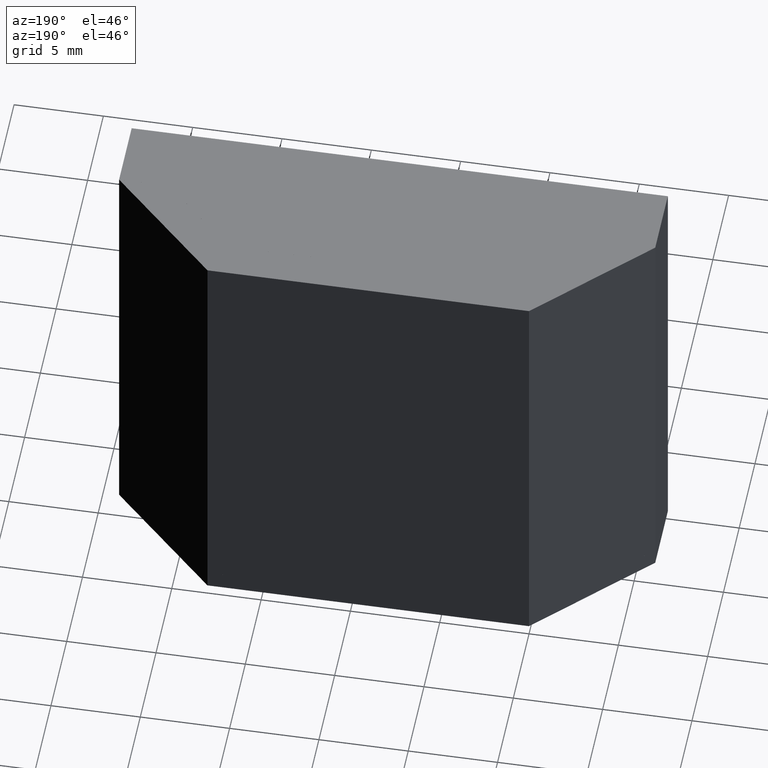
[diagram: clean part render]
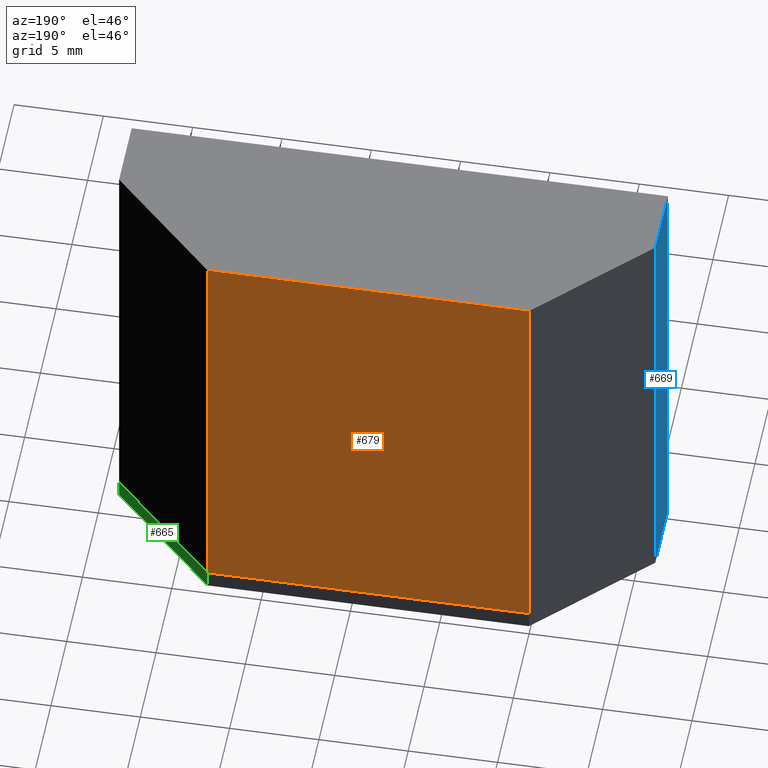
[diagram: same view with three faces highlighted in distinct colors, each labeled with its STEP entity id]
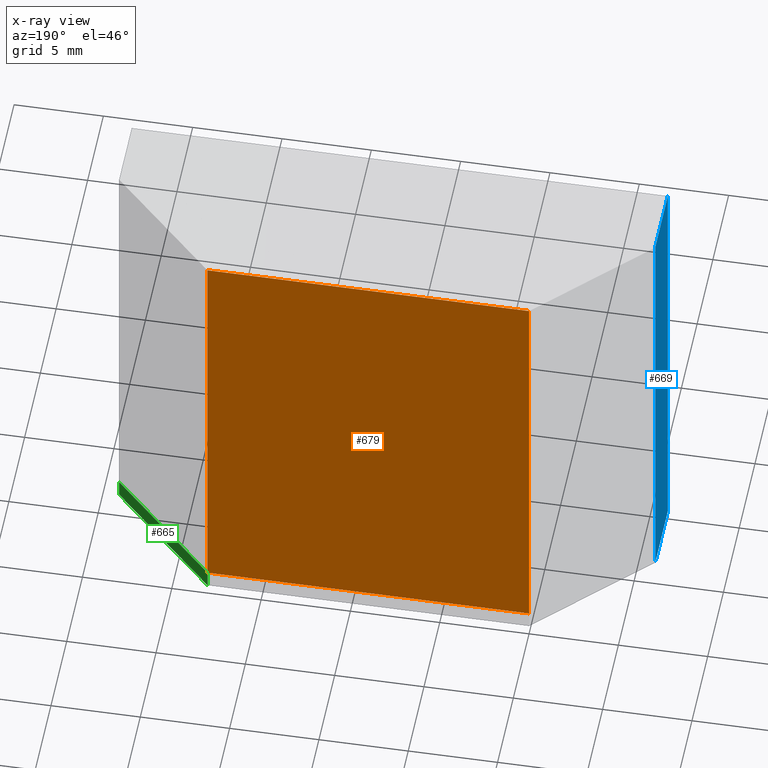
[diagram: x-ray of the same camera — body ghosted, the three highlighted faces saturated]
A machine part, auxiliary view with three faces highlighted in distinct colors.
The next image is the same camera in x-ray (body ghosted, the three faces saturated) — at least one of them is partly hidden behind the body in this view.
Their STEP definitions:

[orange] entity #679 — the highlighted planar face has unit normal (0, 1, 0).
#68=FACE_OUTER_BOUND('',#109,.T.);
#109=EDGE_LOOP('',(#569,#570,#571,#572));
#183=LINE('',#1127,#268);
#184=LINE('',#1129,#269);
#185=LINE('',#1131,#270);
#186=LINE('',#1132,#271);
#268=VECTOR('',#935,10.);
#269=VECTOR('',#936,10.);
#270=VECTOR('',#937,10.);
#271=VECTOR('',#938,10.);
#337=VERTEX_POINT('',#1125);
#338=VERTEX_POINT('',#1126);
#339=VERTEX_POINT('',#1128);
#340=VERTEX_POINT('',#1130);
#419=EDGE_CURVE('',#337,#338,#183,.T.);
#420=EDGE_CURVE('',#339,#338,#184,.T.);
#421=EDGE_CURVE('',#339,#340,#185,.T.);
#422=EDGE_CURVE('',#340,#337,#186,.T.);
#569=ORIENTED_EDGE('',*,*,#419,.T.);
#570=ORIENTED_EDGE('',*,*,#420,.F.);
#571=ORIENTED_EDGE('',*,*,#421,.T.);
#572=ORIENTED_EDGE('',*,*,#422,.T.);
#644=PLANE('',#787);
#679=ADVANCED_FACE('',(#68),#644,.T.);
#787=AXIS2_PLACEMENT_3D('',#1124,#933,#934);
#933=DIRECTION('center_axis',(0.,1.,0.));
#934=DIRECTION('ref_axis',(0.,0.,1.));
#935=DIRECTION('',(1.,0.,0.));
#936=DIRECTION('',(0.,0.,1.));
#937=DIRECTION('',(-1.,0.,0.));
#938=DIRECTION('',(0.,0.,1.));
#1124=CARTESIAN_POINT('Origin',(0.,0.,0.));
#1125=CARTESIAN_POINT('',(-9.,0.,24.));
#1126=CARTESIAN_POINT('',(9.,0.,24.));
#1127=CARTESIAN_POINT('',(9.,0.,24.));
#1128=CARTESIAN_POINT('',(9.,0.,0.));
#1129=CARTESIAN_POINT('',(9.,0.,0.));
#1130=CARTESIAN_POINT('',(-9.,0.,0.));
#1131=CARTESIAN_POINT('',(0.,0.,0.));
#1132=CARTESIAN_POINT('',(-9.,0.,0.));

[blue] entity #669 — the highlighted planar face has unit normal (-1, -0, 0).
#58=FACE_OUTER_BOUND('',#93,.T.);
#93=EDGE_LOOP('',(#520,#521,#522,#523,#524));
#147=LINE('',#1038,#232);
#149=LINE('',#1042,#234);
#158=LINE('',#1059,#243);
#161=LINE('',#1066,#246);
#163=LINE('',#1069,#248);
#232=VECTOR('',#851,10.);
#234=VECTOR('',#855,10.);
#243=VECTOR('',#870,10.);
#246=VECTOR('',#877,10.);
#248=VECTOR('',#881,10.);
#307=VERTEX_POINT('',#1030);
#309=VERTEX_POINT('',#1037);
#310=VERTEX_POINT('',#1041);
#315=VERTEX_POINT('',#1057);
#317=VERTEX_POINT('',#1065);
#377=EDGE_CURVE('',#307,#309,#147,.T.);
#379=EDGE_CURVE('',#310,#309,#149,.T.);
#388=EDGE_CURVE('',#315,#307,#158,.T.);
#391=EDGE_CURVE('',#317,#310,#161,.T.);
#393=EDGE_CURVE('',#315,#317,#163,.T.);
#520=ORIENTED_EDGE('',*,*,#379,.T.);
#521=ORIENTED_EDGE('',*,*,#377,.F.);
#522=ORIENTED_EDGE('',*,*,#388,.F.);
#523=ORIENTED_EDGE('',*,*,#393,.T.);
#524=ORIENTED_EDGE('',*,*,#391,.T.);
#637=PLANE('',#770);
#669=ADVANCED_FACE('',(#58),#637,.T.);
#770=AXIS2_PLACEMENT_3D('',#1068,#879,#880);
#851=DIRECTION('',(0.,0.,1.));
#855=DIRECTION('',(-2.4980018054066E-15,1.,0.));
#870=DIRECTION('',(0.,0.,1.));
#877=DIRECTION('',(0.,0.,1.));
#879=DIRECTION('center_axis',(-1.,-2.4980018054066E-15,0.));
#880=DIRECTION('ref_axis',(0.,0.,1.));
#881=DIRECTION('',(2.4980018054066E-15,-1.,0.));
#1030=CARTESIAN_POINT('',(-6.0066712911562,-6.,1.));
#1037=CARTESIAN_POINT('',(-6.0066712911562,-6.,25.));
#1038=CARTESIAN_POINT('',(-6.0066712911562,-6.,0.));
#1041=CARTESIAN_POINT('',(-6.00667129115619,-10.,25.));
#1042=CARTESIAN_POINT('',(-6.0066712911562,-6.,25.));
#1057=CARTESIAN_POINT('',(-6.0066712911562,-6.,0.));
#1059=CARTESIAN_POINT('',(-6.0066712911562,-6.,0.));
#1065=CARTESIAN_POINT('',(-6.00667129115619,-10.,0.));
#1066=CARTESIAN_POINT('',(-6.00667129115619,-10.,0.));
#1068=CARTESIAN_POINT('Origin',(-6.00667129115619,-10.,0.));
#1069=CARTESIAN_POINT('',(-6.0066712911562,-6.,0.));

[green] entity #665 — the highlighted planar face has unit normal (0.7067, 0.7075, 0).
#54=FACE_OUTER_BOUND('',#89,.T.);
#89=EDGE_LOOP('',(#503,#504,#505,#506));
#141=LINE('',#1027,#226);
#152=LINE('',#1048,#237);
#155=LINE('',#1054,#240);
#156=LINE('',#1055,#241);
#226=VECTOR('',#843,10.);
#237=VECTOR('',#860,10.);
#240=VECTOR('',#865,10.);
#241=VECTOR('',#866,10.);
#304=VERTEX_POINT('',#1024);
#305=VERTEX_POINT('',#1026);
#312=VERTEX_POINT('',#1047);
#314=VERTEX_POINT('',#1053);
#371=EDGE_CURVE('',#305,#304,#141,.T.);
#382=EDGE_CURVE('',#312,#305,#152,.T.);
#385=EDGE_CURVE('',#314,#304,#155,.T.);
#386=EDGE_CURVE('',#314,#312,#156,.T.);
#503=ORIENTED_EDGE('',*,*,#371,.T.);
#504=ORIENTED_EDGE('',*,*,#385,.F.);
#505=ORIENTED_EDGE('',*,*,#386,.T.);
#506=ORIENTED_EDGE('',*,*,#382,.T.);
#633=PLANE('',#766);
#665=ADVANCED_FACE('',(#54),#633,.T.);
#766=AXIS2_PLACEMENT_3D('',#1052,#863,#864);
#843=DIRECTION('',(0.707499563151495,-0.706713780918728,4.97613798493865E-31));
#860=DIRECTION('',(0.,0.,1.));
#863=DIRECTION('center_axis',(0.706713780918728,0.707499563151495,0.));
#864=DIRECTION('ref_axis',(0.,0.,-1.));
#865=DIRECTION('',(0.,0.,1.));
#866=DIRECTION('',(-0.707499563151495,0.706713780918728,0.));
#1024=CARTESIAN_POINT('',(24.0066712911562,-6.,1.));
#1026=CARTESIAN_POINT('',(18.,0.,1.));
#1027=CARTESIAN_POINT('',(16.343613088431,1.65454725049568,1.));
#1047=CARTESIAN_POINT('',(18.,0.,0.));
#1048=CARTESIAN_POINT('',(18.,0.,0.));
#1052=CARTESIAN_POINT('Origin',(18.,0.,0.));
#1053=CARTESIAN_POINT('',(24.0066712911562,-6.,0.));
#1054=CARTESIAN_POINT('',(24.0066712911562,-6.,0.));
#1055=CARTESIAN_POINT('',(24.0066712911562,-6.,0.));